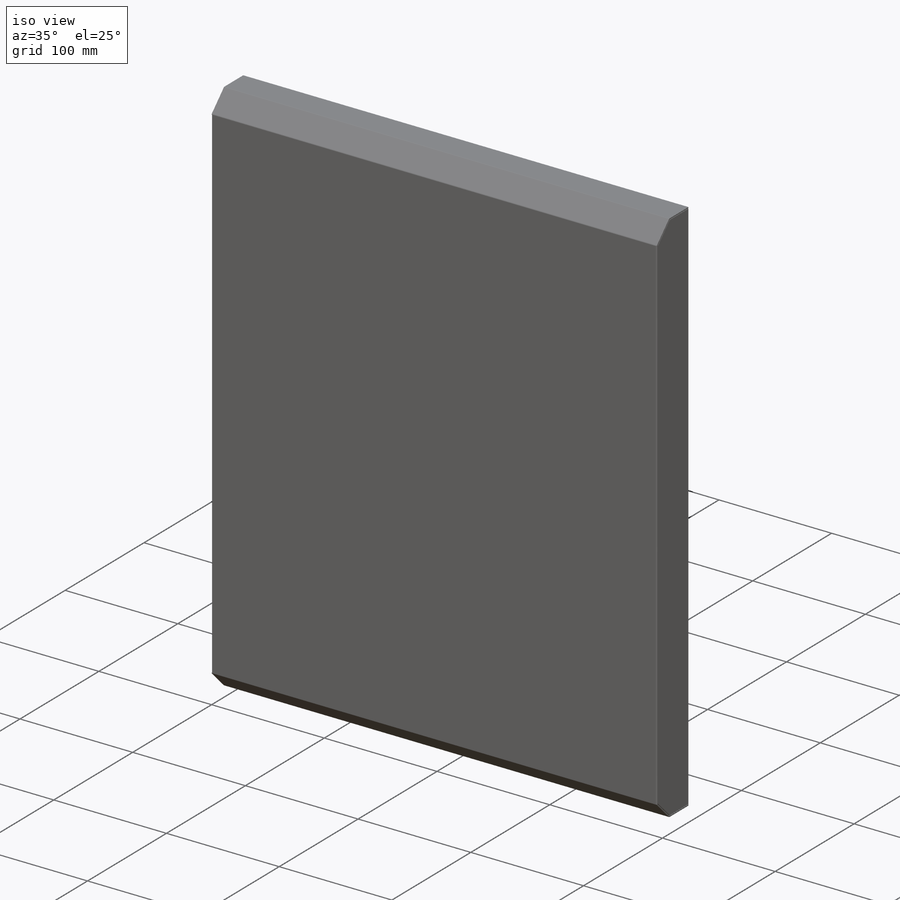
[diagram: iso view]
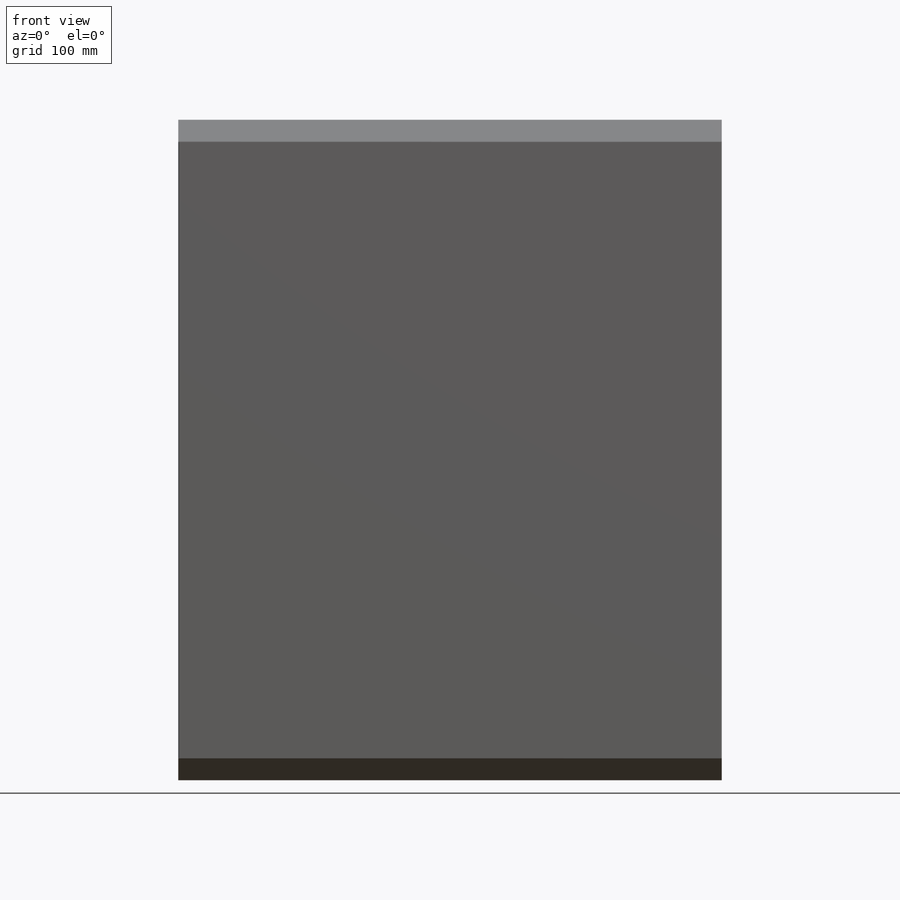
[diagram: front view]
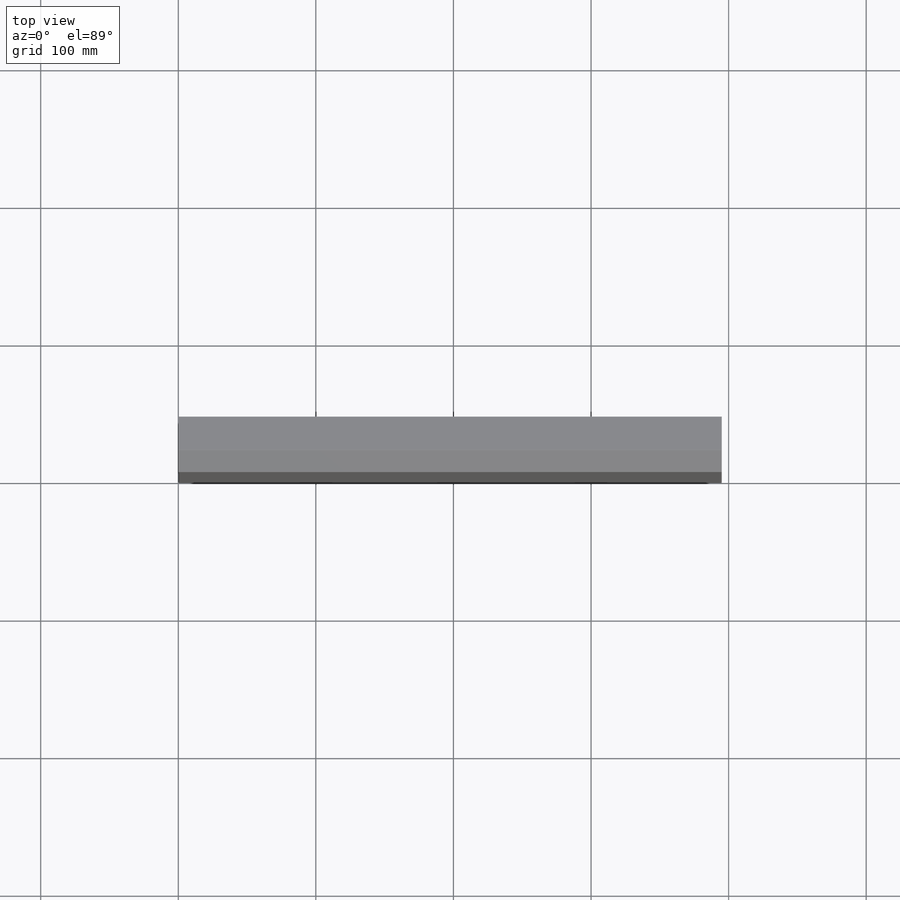
[diagram: top view]
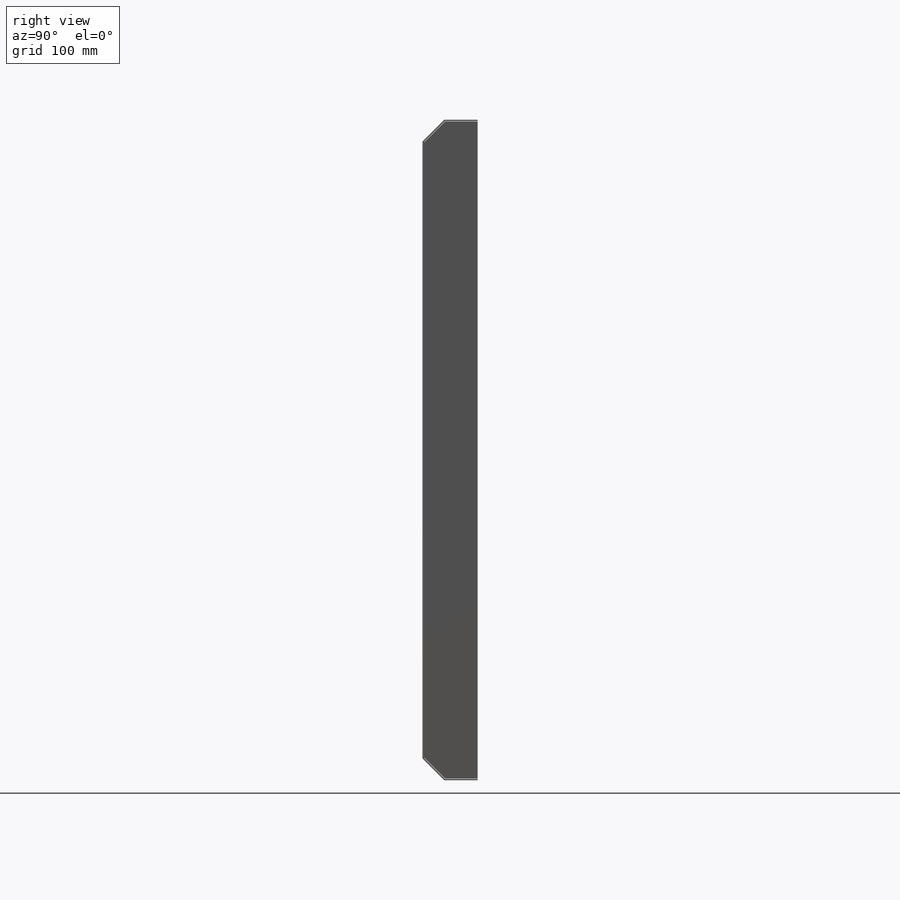
[diagram: right view]
SOLIDWORKS PART (.sldprt)
format: sldprt  version: not decoded by parser v0  size: 471,552 bytes
history: native  units: mm
features: sketch x13, sheet_metal_op x12, plane x3, cut_extrude x3, material x1 + 7 further entries (+13 scaffold rows collapsed)
feature tree (52):
  scaffold x13  (default folders/planes/origin — collapsed)
  material  "Materiál <není určen>"
  plane  "Přední rovina"
  plane  "Horní rovina"
  plane  "Pravá rovina"
  sketch  "Skica1"  dims[c1.D1=~78.637734mm c2.D1=450.0mm c2.D2=477.0mm c2.D3=450.0mm c3.D1=447.5mm c3.D2=395.0mm]
  sheet_metal_op  "Plechový díl1"  Tloušťka=1mm
  sheet_metal_op  "Základní plech1"
  sketch  "Skica5"  dims[c1.D1=0.001mm c1.D4=45.0deg c1.D5=1.0 c1.D8=0.3mm c1.D9=0.3mm c2.D1=0.001mm c2.D2=1.0mm c2.D3=0.0mm c2.D6=0.01mm c2.D7=22.0mm]
  sheet_metal_op  "Lem z hrany2"
  sketch  "Skica8"
  sheet_metal_op  "Ohyb z hrany2"
  sheet_metal_op  "Lem z hrany3"
  sketch  "Skica11"
  sheet_metal_op  "Ohyb z hrany3"
  sheet_metal_op  "Lem z hrany4"
  sketch  "Skica14"
  sheet_metal_op  "Ohyb z hrany4"
  sheet_metal_op  "Lem z hrany5"
  sketch  "Skica19"  dims[D1=0.3mm D2=0.3mm D3=0.3mm D4=0.3mm]
  sheet_metal_op  "Ohyb z hrany5"
  sheet_metal_op  "Lem z hrany7"
  sketch  "Skica27"  dims[D1=0.3mm D2=0.3mm D3=0.3mm D4=0.3mm]
  sheet_metal_op  "Ohyb z hrany7"
  sketch  "Skica30"  dims[c1.D1=4.2mm c1.D2=4.2mm c1.D3=4.2mm c1.D4=4.2mm c1.D5=4.2mm c2.D2=10.0mm c2.D3=80.0mm c2.D4=80.0mm c2.D5=10.0mm c2.D1=500.0mm]
  sketch  "Skica31"  dims[c1.D1=4.2mm c1.D2=4.2mm c1.D3=4.2mm c1.D4=~11.134603mm c1.D5=~11.134603mm c2.D2=10.0mm c2.D3=80.0mm c2.D4=80.0mm c2.D5=10.0mm c2.D1=500.0mm]
  sketch  "Skica32"  dims[c1.D1=9.0mm c1.D2=9.0mm c1.D3=9.0mm c1.D4=9.0mm c1.D5=9.0mm c1.D6=9.0mm c1.D7=9.0mm c1.D8=9.0mm c1.D9=9.0mm c2.D2=13.25mm c2.D3=33.7mm c2.D4=13.25mm c2.D5=33.7mm c2.D6=33.7mm c2.D7=13.25mm c2.D8=13.25mm c2.D9=33.7mm]
  cut_extrude  "Odebrat vysunutím6"  Depth=10mm
  sketch  "Skica34"  dims[D1=11.0mm D2=40.0mm D3=11.0mm D4=40.0mm]
  cut_extrude  "Odebrat vysunutím7"  Depth=10mm
  "Rozvinutý tvar1"
  sketch  "Čáry ohybu1"
  "Rozvinutí-<Ohyb z hrany2>1"
  "Rozvinutí-<Ohyb z hrany3>1"
  "Rozvinutí-<Ohyb z hrany4>1"
  "Rozvinutí-<Ohyb z hrany5>1"
  "Rozvinutí-<Ohyb z hrany7>1"
  "Transformace skici1"
  sketch  "Skica28"  dims[c1.D1=~20.955001mm c2.D1=22.5deg c2.D2=2.0mm c2.D3=13.0mm c2.D4=~13.671304mm c3.D4=22.5deg c3.D5=~23.230909mm c4.D5=22.5deg c4.D6=~20.645465mm c5.D6=22.5deg c5.D7=2.0mm c5.D8=13.0mm c5.D9=2.0mm c5.D10=13.0mm c5.D11=2.0mm c5.D12=13.0mm c5.D13=3.5mm c5.D14=3.5mm c5.D15=3.5mm c5.D16=3.5mm]
  cut_extrude  "Odebrat vysunutím5"  Depth=10mm
decode coverage: 13 of 28 modeling features carry decoded parameters; 7 rows unclassified (native names shown)
note: ~ marks probable driven/reference dimensions
note: suppression state not decoded; provenance and decode notes live in map.json
